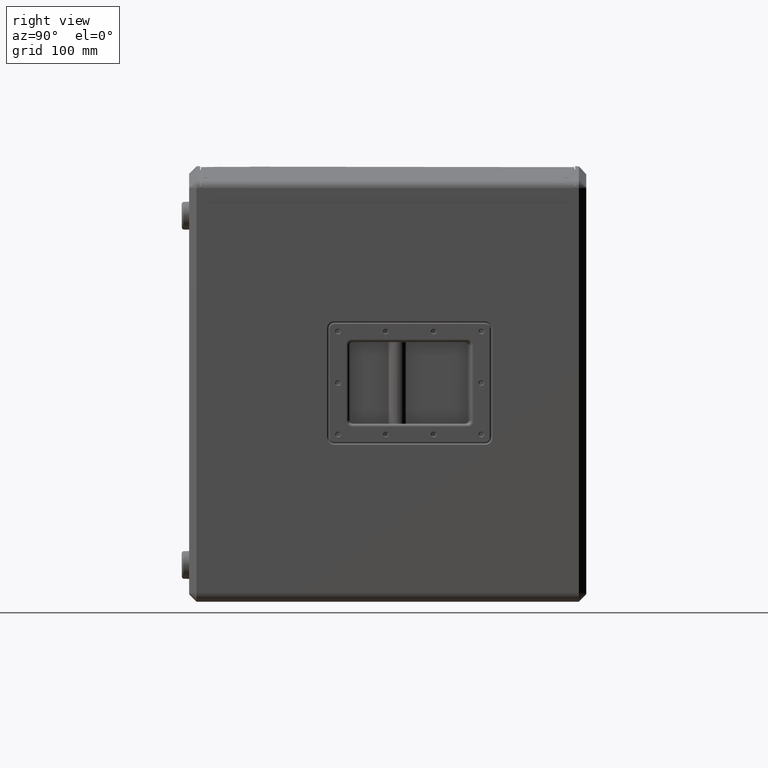
[diagram: clean part render]
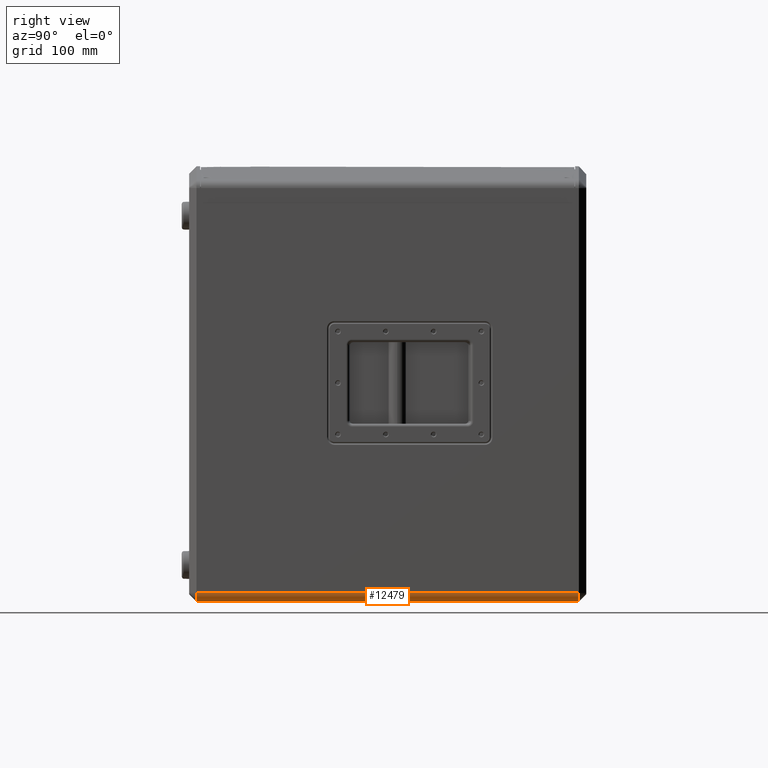
[diagram: same view with one face highlighted and labeled with its STEP entity id]
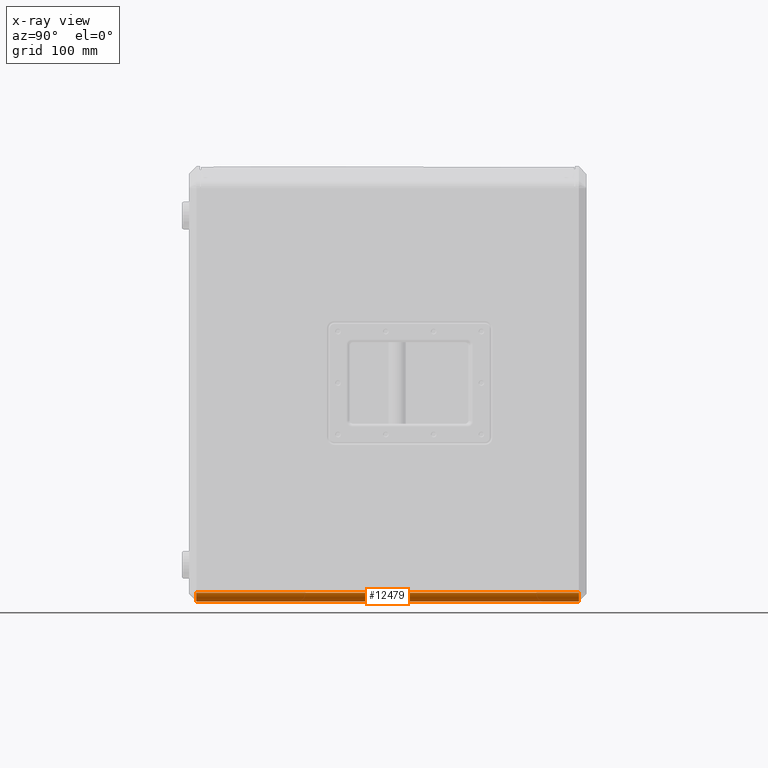
[diagram: x-ray of the same camera — body ghosted, the highlighted face saturated]
A machine part, right view. The second image highlights one B-rep face of the part: STEP entity #12479.
The next image is the same camera in x-ray: the body ghosted, the highlighted face saturated — about 0% of this face is hidden behind the body in this view.
In plain terms, the highlighted cylindrical surface (edge-blend (fillet) strip) has radius 12 mm, axis along (0, 1, 0).
Its self-contained STEP definition (entity closure, byte-faithful):
#478 = DIRECTION ( 'NONE',  ( 0.0000000000000000000, 1.000000000000000000, 0.0000000000000000000 ) ) ;
#1656 = AXIS2_PLACEMENT_3D ( 'NONE', #16536, #35701, #3026 ) ;
#3026 = DIRECTION ( 'NONE',  ( 0.0000000000000000000, 0.0000000000000000000, 1.000000000000000000 ) ) ;
#5016 = CARTESIAN_POINT ( 'NONE',  ( 289.9999999999999432, -260.0000000000000000, -285.4999999999999432 ) ) ;
#5710 = DIRECTION ( 'NONE',  ( 0.0000000000000000000, 1.000000000000000000, 0.0000000000000000000 ) ) ;
#5719 = AXIS2_PLACEMENT_3D ( 'NONE', #20000, #36851, #10716 ) ;
#7301 = VECTOR ( 'NONE', #5710, 1000.000000000000000 ) ;
#8941 = EDGE_CURVE ( 'NONE', #40649, #36930, #39861, .T. ) ;
#10716 = DIRECTION ( 'NONE',  ( 0.0000000000000000000, 0.0000000000000000000, -1.000000000000000000 ) ) ;
#11371 = ORIENTED_EDGE ( 'NONE', *, *, #19059, .T. ) ;
#12479 = ADVANCED_FACE ( 'NONE', ( #26099 ), #36118, .T. ) ;
#13982 = CARTESIAN_POINT ( 'NONE',  ( 277.9999999999998863, -260.0000000000000000, -297.4999999999999432 ) ) ;
#14532 = CARTESIAN_POINT ( 'NONE',  ( 289.9999999999999432, 260.0000000000001137, -285.4999999999999432 ) ) ;
#14865 = EDGE_CURVE ( 'NONE', #30793, #26156, #21567, .T. ) ;
#15173 = CIRCLE ( 'NONE', #5719, 12.00000000000001066 ) ;
#16536 = CARTESIAN_POINT ( 'NONE',  ( 277.9999999999998863, -269.9999999999998863, -285.4999999999999432 ) ) ;
#17287 = ORIENTED_EDGE ( 'NONE', *, *, #8941, .F. ) ;
#17801 = AXIS2_PLACEMENT_3D ( 'NONE', #29518, #478, #20992 ) ;
#18502 = CIRCLE ( 'NONE', #17801, 12.00000000000001066 ) ;
#19059 = EDGE_CURVE ( 'NONE', #40649, #26156, #15173, .T. ) ;
#20000 = CARTESIAN_POINT ( 'NONE',  ( 277.9999999999998863, 260.0000000000001137, -285.4999999999999432 ) ) ;
#20992 = DIRECTION ( 'NONE',  ( 0.0000000000000000000, 0.0000000000000000000, 1.000000000000000000 ) ) ;
#21567 = LINE ( 'NONE', #31582, #7301 ) ;
#22542 = ORIENTED_EDGE ( 'NONE', *, *, #14865, .F. ) ;
#23465 = DIRECTION ( 'NONE',  ( -0.0000000000000000000, -1.000000000000000000, -0.0000000000000000000 ) ) ;
#26099 = FACE_OUTER_BOUND ( 'NONE', #30386, .T. ) ;
#26156 = VERTEX_POINT ( 'NONE', #14532 ) ;
#29027 = VECTOR ( 'NONE', #23465, 1000.000000000000000 ) ;
#29518 = CARTESIAN_POINT ( 'NONE',  ( 277.9999999999998863, -260.0000000000000000, -285.4999999999999432 ) ) ;
#30016 = CARTESIAN_POINT ( 'NONE',  ( 277.9999999999998863, 0.0000000000000000000, -297.4999999999999432 ) ) ;
#30386 = EDGE_LOOP ( 'NONE', ( #22542, #33524, #17287, #11371 ) ) ;
#30793 = VERTEX_POINT ( 'NONE', #5016 ) ;
#31582 = CARTESIAN_POINT ( 'NONE',  ( 289.9999999999999432, -269.9999999999998863, -285.4999999999999432 ) ) ;
#33524 = ORIENTED_EDGE ( 'NONE', *, *, #38203, .T. ) ;
#35701 = DIRECTION ( 'NONE',  ( 0.0000000000000000000, 1.000000000000000000, 0.0000000000000000000 ) ) ;
#36118 = CYLINDRICAL_SURFACE ( 'NONE', #1656, 12.00000000000001066 ) ;
#36851 = DIRECTION ( 'NONE',  ( 0.0000000000000000000, -1.000000000000000000, 0.0000000000000000000 ) ) ;
#36930 = VERTEX_POINT ( 'NONE', #13982 ) ;
#38203 = EDGE_CURVE ( 'NONE', #30793, #36930, #18502, .T. ) ;
#39612 = CARTESIAN_POINT ( 'NONE',  ( 277.9999999999998863, 260.0000000000001137, -297.4999999999999432 ) ) ;
#39861 = LINE ( 'NONE', #30016, #29027 ) ;
#40649 = VERTEX_POINT ( 'NONE', #39612 ) ;